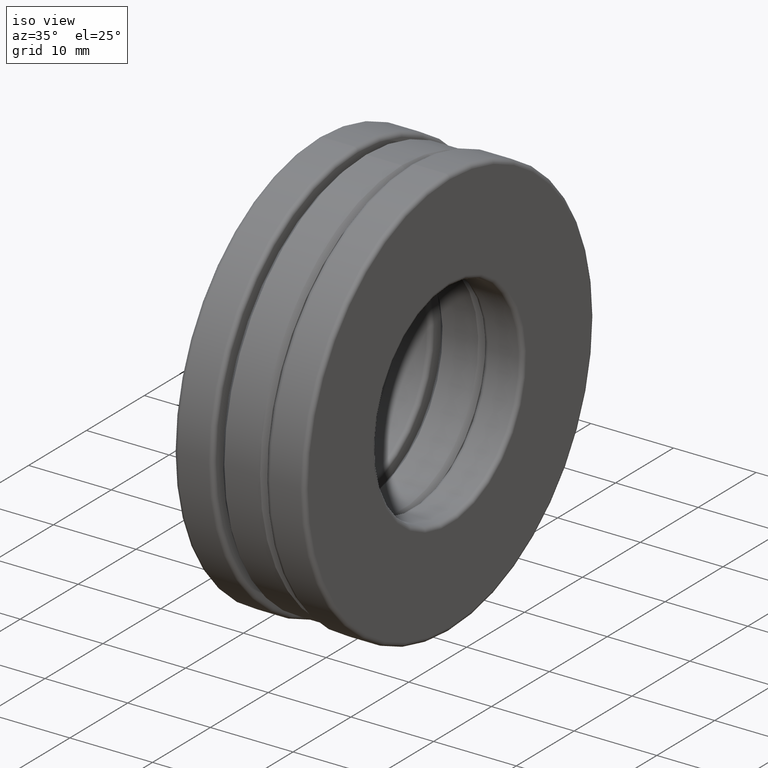
[diagram: clean part render]
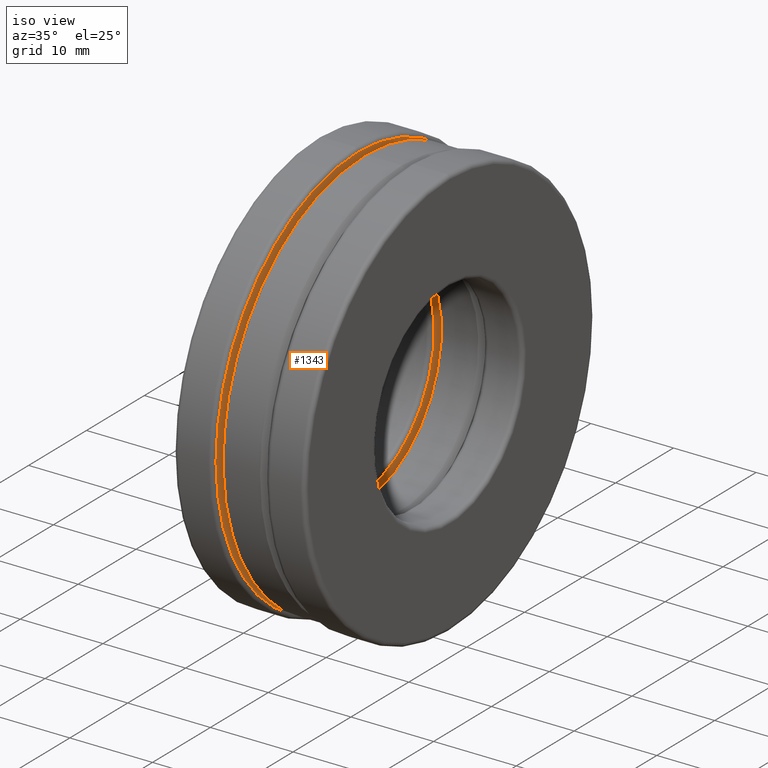
[diagram: same view with one face highlighted and labeled with its STEP entity id]
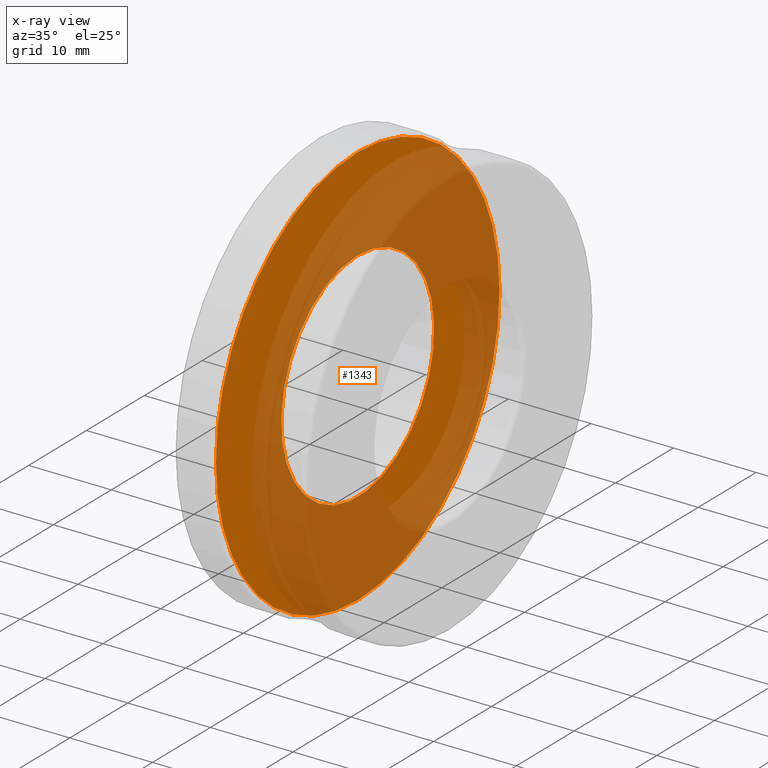
[diagram: x-ray of the same camera — body ghosted, the highlighted face saturated]
A machine part, iso view. The second image highlights one B-rep face of the part: STEP entity #1343.
The next image is the same camera in x-ray: the body ghosted, the highlighted face saturated — about 65% of this face is hidden behind the body in this view.
In plain terms, the highlighted planar face has unit normal (1, 0, 0).
Its self-contained STEP definition (entity closure, byte-faithful):
#43 = DIRECTION ( 'NONE',  ( 0.0000000000000000000, 0.0000000000000000000, 1.000000000000000000 ) ) ;
#114 = PLANE ( 'NONE',  #816 ) ;
#194 = AXIS2_PLACEMENT_3D ( 'NONE', #403, #634, #43 ) ;
#270 = EDGE_CURVE ( 'NONE', #338, #338, #740, .T. ) ;
#333 = ORIENTED_EDGE ( 'NONE', *, *, #1300, .F. ) ;
#338 = VERTEX_POINT ( 'NONE', #630 ) ;
#403 = CARTESIAN_POINT ( 'NONE',  ( -0.1250000000000000600, 0.0000000000000000000, 0.0000000000000000000 ) ) ;
#428 = CARTESIAN_POINT ( 'NONE',  ( -0.1250000000000000600, 0.0000000000000000000, 0.9643749999999998700 ) ) ;
#593 = DIRECTION ( 'NONE',  ( -1.000000000000000000, -0.0000000000000000000, -0.0000000000000000000 ) ) ;
#630 = CARTESIAN_POINT ( 'NONE',  ( -0.1250000000000000600, 0.0000000000000000000, 0.5200000000000000200 ) ) ;
#634 = DIRECTION ( 'NONE',  ( -1.000000000000000000, -0.0000000000000000000, -0.0000000000000000000 ) ) ;
#709 = DIRECTION ( 'NONE',  ( 0.0000000000000000000, 0.0000000000000000000, -1.000000000000000000 ) ) ;
#739 = AXIS2_PLACEMENT_3D ( 'NONE', #1264, #593, #1470 ) ;
#740 = CIRCLE ( 'NONE', #194, 0.5200000000000000200 ) ;
#804 = EDGE_LOOP ( 'NONE', ( #1332 ) ) ;
#816 = AXIS2_PLACEMENT_3D ( 'NONE', #917, #926, #709 ) ;
#917 = CARTESIAN_POINT ( 'NONE',  ( -0.1250000000000000600, 0.0000000000000000000, 0.0000000000000000000 ) ) ;
#926 = DIRECTION ( 'NONE',  ( 1.000000000000000000, 0.0000000000000000000, 0.0000000000000000000 ) ) ;
#1049 = FACE_OUTER_BOUND ( 'NONE', #1354, .T. ) ;
#1173 = CIRCLE ( 'NONE', #739, 0.9643749999999998700 ) ;
#1227 = VERTEX_POINT ( 'NONE', #428 ) ;
#1264 = CARTESIAN_POINT ( 'NONE',  ( -0.1250000000000000600, 0.0000000000000000000, 0.0000000000000000000 ) ) ;
#1300 = EDGE_CURVE ( 'NONE', #1227, #1227, #1173, .T. ) ;
#1332 = ORIENTED_EDGE ( 'NONE', *, *, #270, .T. ) ;
#1342 = FACE_BOUND ( 'NONE', #804, .T. ) ;
#1343 = ADVANCED_FACE ( 'NONE', ( #1342, #1049 ), #114, .T. ) ;
#1354 = EDGE_LOOP ( 'NONE', ( #333 ) ) ;
#1470 = DIRECTION ( 'NONE',  ( 0.0000000000000000000, 0.0000000000000000000, 1.000000000000000000 ) ) ;